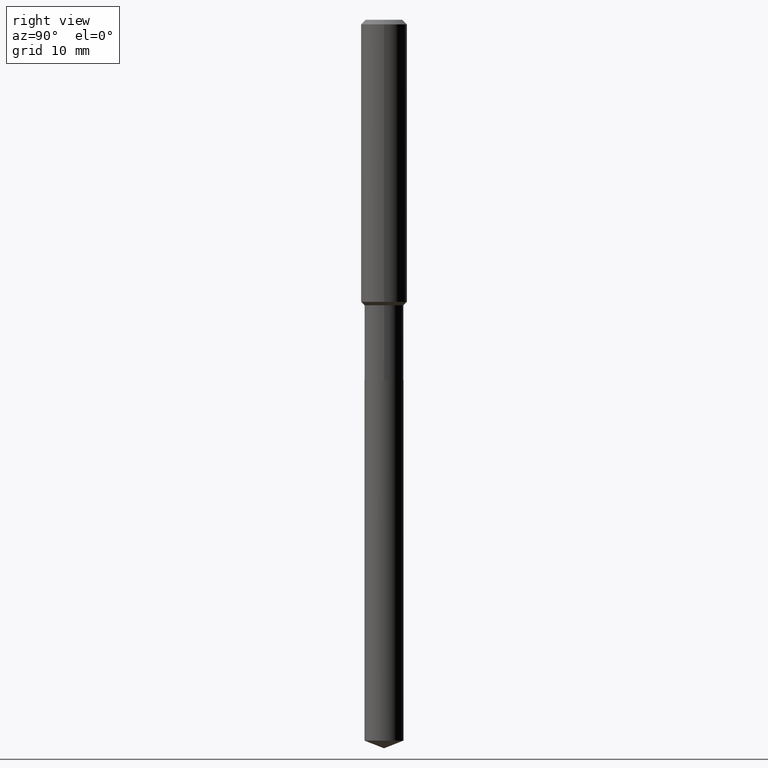
[diagram: clean part render]
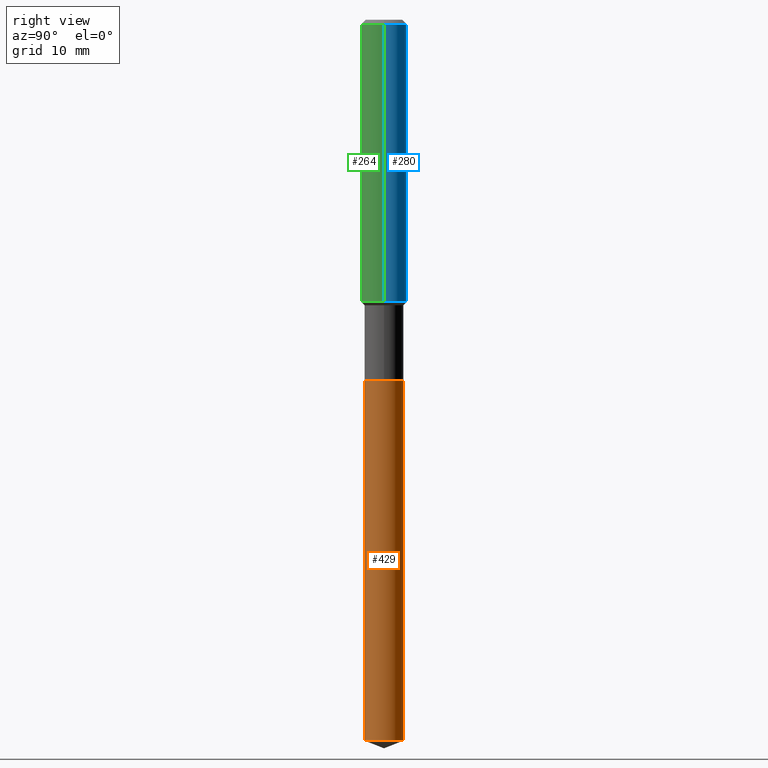
[diagram: same view with three faces highlighted in distinct colors, each labeled with its STEP entity id]
A machine part, right view with three faces highlighted in distinct colors.
Their STEP definitions:

[orange] entity #429 — the highlighted cylindrical surface (edge-blend (fillet) strip) has radius 2.5502 mm, axis along (-0, 0, 1).
#6 = VERTEX_POINT ( 'NONE', #54 ) ;
#26 = DIRECTION ( 'NONE',  ( -6.982962677686266711E-15, -1.000000000000000000, 2.720964137115799877E-15 ) ) ;
#28 = EDGE_CURVE ( 'NONE', #411, #6, #160, .T. ) ;
#36 = FACE_OUTER_BOUND ( 'NONE', #452, .T. ) ;
#54 = CARTESIAN_POINT ( 'NONE',  ( -7.010894528396559145E-16, -0.1004000000000064563, -1.850400000000000045 ) ) ;
#64 = DIRECTION ( 'NONE',  ( -2.445480539169630025E-29, 3.491464536541551464E-15, 1.000000000000000000 ) ) ;
#65 = DIRECTION ( 'NONE',  ( -6.982962677686266711E-15, -1.000000000000000000, 5.441928274231599754E-15 ) ) ;
#101 = CARTESIAN_POINT ( 'NONE',  ( 9.049849241497684976E-29, -1.292072417515092949E-14, -3.700651388248259455 ) ) ;
#130 = CARTESIAN_POINT ( 'NONE',  ( 7.133849067031857711E-16, 0.1003999999999935500, -1.850400000000000489 ) ) ;
#131 = VECTOR ( 'NONE', #469, 39.37007874015748143 ) ;
#141 = AXIS2_PLACEMENT_3D ( 'NONE', #489, #255, #305 ) ;
#154 = AXIS2_PLACEMENT_3D ( 'NONE', #171, #295, #26 ) ;
#158 = EDGE_CURVE ( 'NONE', #327, #422, #246, .T. ) ;
#160 = LINE ( 'NONE', #349, #131 ) ;
#171 = CARTESIAN_POINT ( 'NONE',  ( 4.525095478964977394E-29, -6.460637069395357576E-15, -1.850400000000000267 ) ) ;
#195 = ORIENTED_EDGE ( 'NONE', *, *, #28, .F. ) ;
#203 = CARTESIAN_POINT ( 'NONE',  ( -7.010894528396106536E-16, -0.1004000000000129511, -3.700651388248259011 ) ) ;
#219 = AXIS2_PLACEMENT_3D ( 'NONE', #101, #431, #65 ) ;
#246 = LINE ( 'NONE', #130, #416 ) ;
#255 = DIRECTION ( 'NONE',  ( -2.445480539169629745E-29, 3.491464536541551464E-15, 1.000000000000000000 ) ) ;
#295 = DIRECTION ( 'NONE',  ( -2.445480539169629745E-29, 3.491464536541551464E-15, 1.000000000000000000 ) ) ;
#302 = ORIENTED_EDGE ( 'NONE', *, *, #477, .F. ) ;
#305 = DIRECTION ( 'NONE',  ( -6.982962677686266711E-15, -1.000000000000000000, 2.720964137115799877E-15 ) ) ;
#310 = ORIENTED_EDGE ( 'NONE', *, *, #372, .T. ) ;
#327 = VERTEX_POINT ( 'NONE', #368 ) ;
#334 = CIRCLE ( 'NONE', #219, 0.1004000000000000031 ) ;
#349 = CARTESIAN_POINT ( 'NONE',  ( -7.010894528396559145E-16, -0.1004000000000064563, -1.850400000000000045 ) ) ;
#358 = CYLINDRICAL_SURFACE ( 'NONE', #154, 0.1004000000000000031 ) ;
#368 = CARTESIAN_POINT ( 'NONE',  ( 7.133849067032312293E-16, 0.1003999999999871107, -3.700651388248259899 ) ) ;
#372 = EDGE_CURVE ( 'NONE', #411, #327, #334, .T. ) ;
#378 = ORIENTED_EDGE ( 'NONE', *, *, #158, .T. ) ;
#411 = VERTEX_POINT ( 'NONE', #203 ) ;
#416 = VECTOR ( 'NONE', #64, 39.37007874015748143 ) ;
#422 = VERTEX_POINT ( 'NONE', #475 ) ;
#429 = ADVANCED_FACE ( 'NONE', ( #36 ), #358, .T. ) ;
#431 = DIRECTION ( 'NONE',  ( -2.445480539169629745E-29, 3.491464536541551464E-15, 1.000000000000000000 ) ) ;
#441 = CIRCLE ( 'NONE', #141, 0.1004000000000000031 ) ;
#452 = EDGE_LOOP ( 'NONE', ( #310, #378, #302, #195 ) ) ;
#469 = DIRECTION ( 'NONE',  ( -2.445480539169630025E-29, 3.491464536541551464E-15, 1.000000000000000000 ) ) ;
#475 = CARTESIAN_POINT ( 'NONE',  ( 7.133849067032315251E-16, 0.1003999999999935638, -1.850400000000000489 ) ) ;
#477 = EDGE_CURVE ( 'NONE', #6, #422, #441, .T. ) ;
#489 = CARTESIAN_POINT ( 'NONE',  ( 4.525095478964977394E-29, -6.460637069395357576E-15, -1.850400000000000267 ) ) ;

[blue] entity #280 — the highlighted cylindrical surface (edge-blend (fillet) strip) has radius 2.9997 mm, axis along (-0, 0, 1).
#3 = VECTOR ( 'NONE', #405, 39.37007874015748143 ) ;
#13 = CARTESIAN_POINT ( 'NONE',  ( 0.1180999999999999966, -9.071566814582237199E-16, -0.02362000000000014088 ) ) ;
#23 = DIRECTION ( 'NONE',  ( 1.000000000000000000, -6.982962677686270655E-15, 0.000000000000000000 ) ) ;
#31 = CARTESIAN_POINT ( 'NONE',  ( 3.541772471997932877E-29, -5.056712423046527608E-15, -1.448299999999999921 ) ) ;
#35 = AXIS2_PLACEMENT_3D ( 'NONE', #418, #222, #380 ) ;
#45 = VERTEX_POINT ( 'NONE', #13 ) ;
#46 = ORIENTED_EDGE ( 'NONE', *, *, #384, .T. ) ;
#49 = CIRCLE ( 'NONE', #107, 0.1180999999999999966 ) ;
#61 = CIRCLE ( 'NONE', #148, 0.1181000000000001632 ) ;
#94 = DIRECTION ( 'NONE',  ( -2.445468806185136597E-29, 3.491481338843145583E-15, 1.000000000000000000 ) ) ;
#98 = DIRECTION ( 'NONE',  ( -2.445468806185136597E-29, 3.491481338843145583E-15, 1.000000000000000000 ) ) ;
#99 = EDGE_LOOP ( 'NONE', ( #46, #479, #263, #179 ) ) ;
#106 = CARTESIAN_POINT ( 'NONE',  ( 0.1181000000000000799, -8.246878922347486570E-16, 5.758764772215004644E-30 ) ) ;
#107 = AXIS2_PLACEMENT_3D ( 'NONE', #200, #98, #399 ) ;
#112 = DIRECTION ( 'NONE',  ( -2.445468806185136877E-29, 3.491481338843145188E-15, 1.000000000000000000 ) ) ;
#129 = CARTESIAN_POINT ( 'NONE',  ( 0.1181000000000001632, -5.881400315281276659E-15, -1.448299999999999921 ) ) ;
#148 = AXIS2_PLACEMENT_3D ( 'NONE', #31, #94, #23 ) ;
#179 = ORIENTED_EDGE ( 'NONE', *, *, #488, .F. ) ;
#200 = CARTESIAN_POINT ( 'NONE',  ( 5.776197320209327532E-31, -8.246878922347559293E-17, -0.02362000000000014088 ) ) ;
#215 = VERTEX_POINT ( 'NONE', #390 ) ;
#222 = DIRECTION ( 'NONE',  ( -2.445468806185136597E-29, 3.491481338843145583E-15, 1.000000000000000000 ) ) ;
#263 = ORIENTED_EDGE ( 'NONE', *, *, #408, .F. ) ;
#280 = ADVANCED_FACE ( 'NONE', ( #385 ), #350, .T. ) ;
#285 = LINE ( 'NONE', #402, #3 ) ;
#304 = VERTEX_POINT ( 'NONE', #354 ) ;
#322 = EDGE_CURVE ( 'NONE', #304, #215, #285, .T. ) ;
#350 = CYLINDRICAL_SURFACE ( 'NONE', #35, 0.1181000000000000799 ) ;
#354 = CARTESIAN_POINT ( 'NONE',  ( -0.1181000000000001632, -4.217561452113847833E-15, -1.448299999999999921 ) ) ;
#380 = DIRECTION ( 'NONE',  ( 1.000000000000000000, -6.982962677686266711E-15, 4.876176775795936353E-29 ) ) ;
#384 = EDGE_CURVE ( 'NONE', #447, #304, #61, .T. ) ;
#385 = FACE_OUTER_BOUND ( 'NONE', #99, .T. ) ;
#390 = CARTESIAN_POINT ( 'NONE',  ( -0.1180999999999999966, -1.730439635202322152E-15, -0.02362000000000014088 ) ) ;
#399 = DIRECTION ( 'NONE',  ( 1.000000000000000000, -6.982962677686266711E-15, 0.000000000000000000 ) ) ;
#402 = CARTESIAN_POINT ( 'NONE',  ( -0.1181000000000000799, 8.391509709326788873E-16, -5.809262341591047988E-30 ) ) ;
#405 = DIRECTION ( 'NONE',  ( -2.445468806185136877E-29, 3.491481338843145188E-15, 1.000000000000000000 ) ) ;
#408 = EDGE_CURVE ( 'NONE', #45, #215, #49, .T. ) ;
#418 = CARTESIAN_POINT ( 'NONE',  ( 0.000000000000000000, 0.000000000000000000, 0.000000000000000000 ) ) ;
#445 = LINE ( 'NONE', #106, #483 ) ;
#447 = VERTEX_POINT ( 'NONE', #129 ) ;
#479 = ORIENTED_EDGE ( 'NONE', *, *, #322, .T. ) ;
#483 = VECTOR ( 'NONE', #112, 39.37007874015748143 ) ;
#488 = EDGE_CURVE ( 'NONE', #447, #45, #445, .T. ) ;

[green] entity #264 — the highlighted cylindrical surface (edge-blend (fillet) strip) has radius 2.9997 mm, axis along (-0, 0, 1).
#3 = VECTOR ( 'NONE', #405, 39.37007874015748143 ) ;
#13 = CARTESIAN_POINT ( 'NONE',  ( 0.1180999999999999966, -9.071566814582237199E-16, -0.02362000000000014088 ) ) ;
#43 = CIRCLE ( 'NONE', #364, 0.1180999999999999966 ) ;
#45 = VERTEX_POINT ( 'NONE', #13 ) ;
#55 = ORIENTED_EDGE ( 'NONE', *, *, #322, .F. ) ;
#57 = DIRECTION ( 'NONE',  ( 1.000000000000000000, -6.982962677686270655E-15, 0.000000000000000000 ) ) ;
#79 = EDGE_CURVE ( 'NONE', #304, #447, #409, .T. ) ;
#83 = CARTESIAN_POINT ( 'NONE',  ( 3.541772471997932877E-29, -5.056712423046527608E-15, -1.448299999999999921 ) ) ;
#105 = ORIENTED_EDGE ( 'NONE', *, *, #127, .F. ) ;
#106 = CARTESIAN_POINT ( 'NONE',  ( 0.1181000000000000799, -8.246878922347486570E-16, 5.758764772215004644E-30 ) ) ;
#112 = DIRECTION ( 'NONE',  ( -2.445468806185136877E-29, 3.491481338843145188E-15, 1.000000000000000000 ) ) ;
#115 = CARTESIAN_POINT ( 'NONE',  ( 0.000000000000000000, 0.000000000000000000, 0.000000000000000000 ) ) ;
#116 = EDGE_LOOP ( 'NONE', ( #55, #210, #381, #105 ) ) ;
#127 = EDGE_CURVE ( 'NONE', #215, #45, #43, .T. ) ;
#129 = CARTESIAN_POINT ( 'NONE',  ( 0.1181000000000001632, -5.881400315281276659E-15, -1.448299999999999921 ) ) ;
#188 = AXIS2_PLACEMENT_3D ( 'NONE', #83, #388, #57 ) ;
#198 = CARTESIAN_POINT ( 'NONE',  ( 5.776197320209327532E-31, -8.246878922347559293E-17, -0.02362000000000014088 ) ) ;
#210 = ORIENTED_EDGE ( 'NONE', *, *, #79, .T. ) ;
#215 = VERTEX_POINT ( 'NONE', #390 ) ;
#264 = ADVANCED_FACE ( 'NONE', ( #307 ), #282, .T. ) ;
#267 = DIRECTION ( 'NONE',  ( 1.000000000000000000, -6.982962677686266711E-15, 4.876176775795936353E-29 ) ) ;
#275 = DIRECTION ( 'NONE',  ( -2.445468806185136597E-29, 3.491481338843145583E-15, 1.000000000000000000 ) ) ;
#282 = CYLINDRICAL_SURFACE ( 'NONE', #303, 0.1181000000000000799 ) ;
#285 = LINE ( 'NONE', #402, #3 ) ;
#286 = DIRECTION ( 'NONE',  ( 1.000000000000000000, -6.982962677686266711E-15, 0.000000000000000000 ) ) ;
#303 = AXIS2_PLACEMENT_3D ( 'NONE', #115, #275, #267 ) ;
#304 = VERTEX_POINT ( 'NONE', #354 ) ;
#307 = FACE_OUTER_BOUND ( 'NONE', #116, .T. ) ;
#322 = EDGE_CURVE ( 'NONE', #304, #215, #285, .T. ) ;
#354 = CARTESIAN_POINT ( 'NONE',  ( -0.1181000000000001632, -4.217561452113847833E-15, -1.448299999999999921 ) ) ;
#364 = AXIS2_PLACEMENT_3D ( 'NONE', #198, #482, #286 ) ;
#381 = ORIENTED_EDGE ( 'NONE', *, *, #488, .T. ) ;
#388 = DIRECTION ( 'NONE',  ( -2.445468806185136597E-29, 3.491481338843145583E-15, 1.000000000000000000 ) ) ;
#390 = CARTESIAN_POINT ( 'NONE',  ( -0.1180999999999999966, -1.730439635202322152E-15, -0.02362000000000014088 ) ) ;
#402 = CARTESIAN_POINT ( 'NONE',  ( -0.1181000000000000799, 8.391509709326788873E-16, -5.809262341591047988E-30 ) ) ;
#405 = DIRECTION ( 'NONE',  ( -2.445468806185136877E-29, 3.491481338843145188E-15, 1.000000000000000000 ) ) ;
#409 = CIRCLE ( 'NONE', #188, 0.1181000000000001632 ) ;
#445 = LINE ( 'NONE', #106, #483 ) ;
#447 = VERTEX_POINT ( 'NONE', #129 ) ;
#482 = DIRECTION ( 'NONE',  ( -2.445468806185136597E-29, 3.491481338843145583E-15, 1.000000000000000000 ) ) ;
#483 = VECTOR ( 'NONE', #112, 39.37007874015748143 ) ;
#488 = EDGE_CURVE ( 'NONE', #447, #45, #445, .T. ) ;